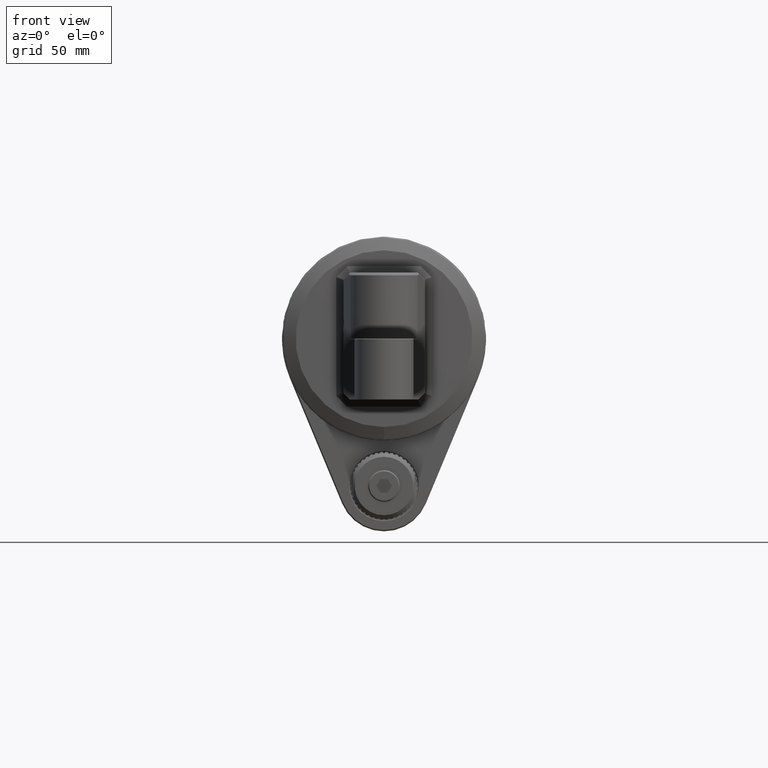
[diagram: clean part render]
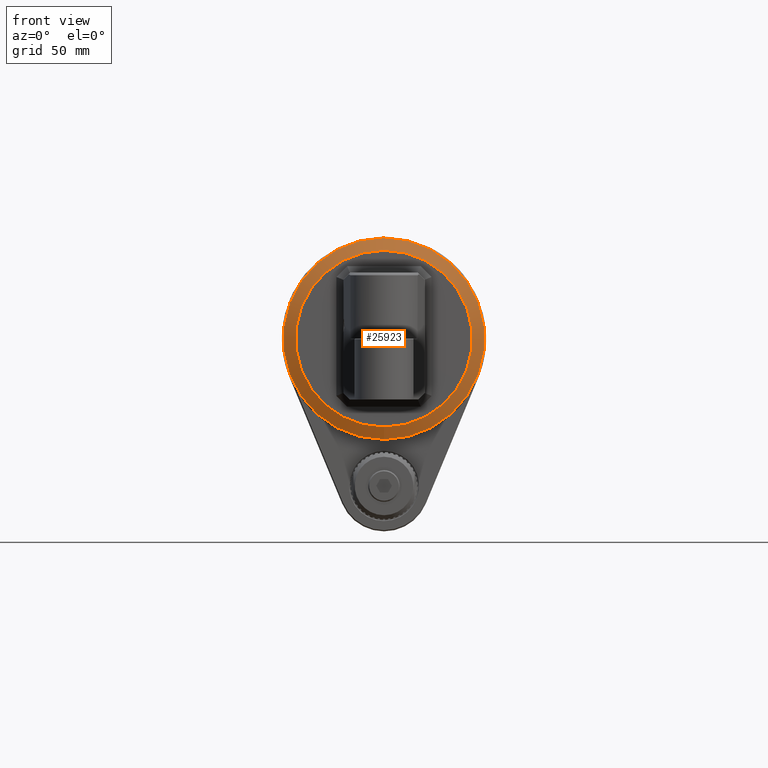
[diagram: same view with one face highlighted and labeled with its STEP entity id]
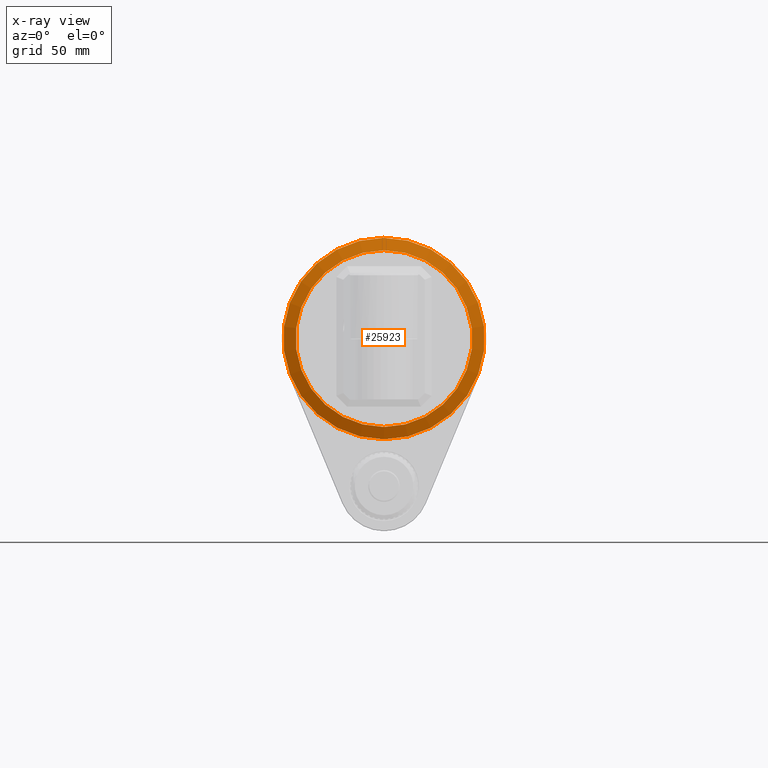
[diagram: x-ray of the same camera — body ghosted, the highlighted face saturated]
A machine part, front view. The second image highlights one B-rep face of the part: STEP entity #25923.
The next image is the same camera in x-ray: the body ghosted, the highlighted face saturated — about 0% of this face is hidden behind the body in this view.
In plain terms, the highlighted conical surface has half-angle 63 deg.
Its self-contained STEP definition (entity closure, byte-faithful):
#375=CONICAL_SURFACE('',#27861,1.64279508857756,1.09955742875643);
#2084=LINE('',#40043,#4463);
#4463=VECTOR('',#31622,1.64279508857756);
#6732=CIRCLE('',#27860,1.53543307086614);
#6733=CIRCLE('',#27862,1.75015710628898);
#6734=CIRCLE('',#27863,1.75015710628898);
#7756=FACE_OUTER_BOUND('',#9332,.T.);
#9332=EDGE_LOOP('',(#18945,#18946,#18947,#18948,#18949));
#11624=VERTEX_POINT('',#40023);
#11631=VERTEX_POINT('',#40039);
#11632=VERTEX_POINT('',#40040);
#14413=EDGE_CURVE('',#11624,#11624,#6732,.T.);
#14421=EDGE_CURVE('',#11631,#11632,#6733,.T.);
#14422=EDGE_CURVE('',#11632,#11631,#6734,.T.);
#14423=EDGE_CURVE('',#11632,#11624,#2084,.T.);
#18945=ORIENTED_EDGE('',*,*,#14421,.F.);
#18946=ORIENTED_EDGE('',*,*,#14422,.F.);
#18947=ORIENTED_EDGE('',*,*,#14423,.T.);
#18948=ORIENTED_EDGE('',*,*,#14413,.T.);
#18949=ORIENTED_EDGE('',*,*,#14423,.F.);
#25923=ADVANCED_FACE('',(#7756),#375,.T.);
#27860=AXIS2_PLACEMENT_3D('',#40024,#31607,#31608);
#27861=AXIS2_PLACEMENT_3D('',#40038,#31616,#31617);
#27862=AXIS2_PLACEMENT_3D('',#40041,#31618,#31619);
#27863=AXIS2_PLACEMENT_3D('',#40042,#31620,#31621);
#31607=DIRECTION('center_axis',(0.,-1.,0.));
#31608=DIRECTION('ref_axis',(0.,0.,1.));
#31616=DIRECTION('center_axis',(0.,-1.,0.));
#31617=DIRECTION('ref_axis',(0.,0.,1.));
#31618=DIRECTION('center_axis',(0.,-1.,0.));
#31619=DIRECTION('ref_axis',(0.,0.,1.));
#31620=DIRECTION('center_axis',(0.,-1.,0.));
#31621=DIRECTION('ref_axis',(0.,0.,1.));
#31622=DIRECTION('',(-1.09116828786669E-16,0.453990499739547,0.891006524188368));
#40023=CARTESIAN_POINT('',(1.8803631955412E-16,1.53543307086612,-1.53543307086613));
#40024=CARTESIAN_POINT('Origin',(0.,1.53543307086614,-7.75887418995669E-16));
#40038=CARTESIAN_POINT('Origin',(0.,1.48072939053307,-7.48244470469685E-16));
#40039=CARTESIAN_POINT('',(0.00855552027453312,1.4260257102,1.75013619463362));
#40040=CARTESIAN_POINT('',(2.1433242982218E-16,1.42602571020003,-1.75015710628899));
#40041=CARTESIAN_POINT('Origin',(0.,1.4260257102,-7.20601521943701E-16));
#40042=CARTESIAN_POINT('Origin',(0.,1.4260257102,-7.20601521943701E-16));
#40043=CARTESIAN_POINT('',(2.0118437468815E-16,1.48072939053307,-1.64279508857756));